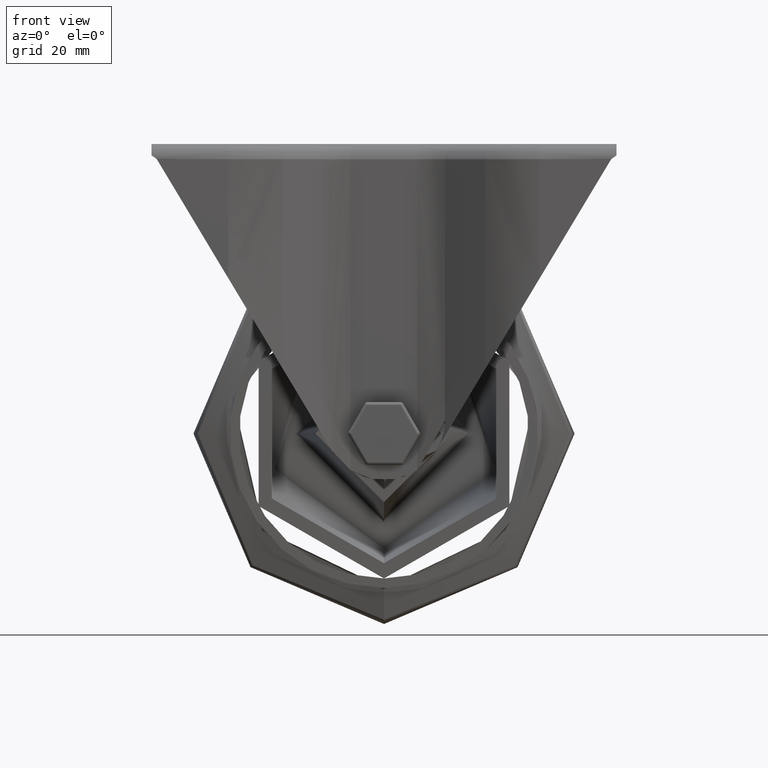
[diagram: clean part render]
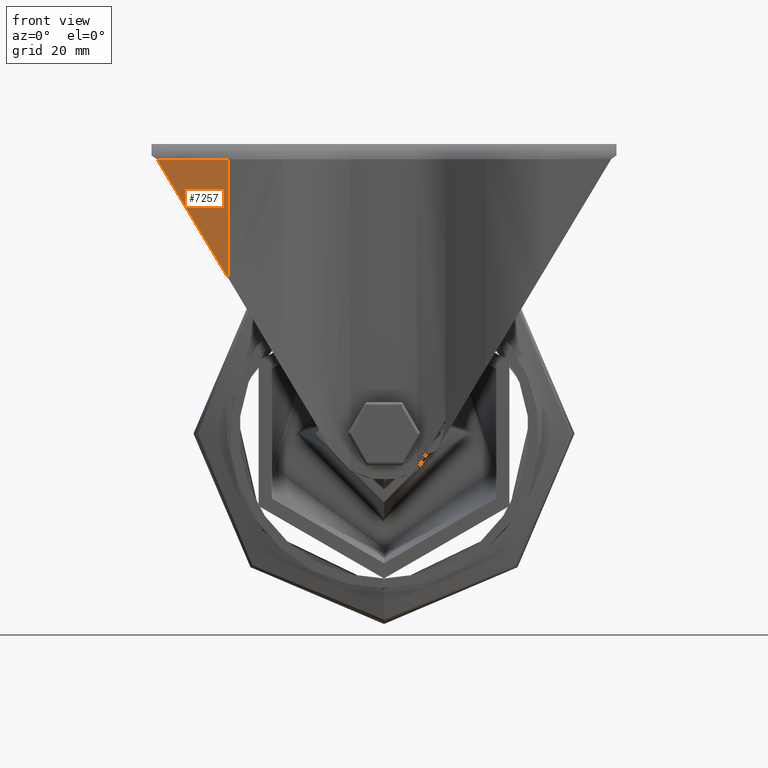
[diagram: same view with one face highlighted and labeled with its STEP entity id]
A machine part, front view. The second image highlights one B-rep face of the part: STEP entity #7257.
In plain terms, the highlighted planar face has unit normal (0, -1, 0).
Its self-contained STEP definition (entity closure, byte-faithful):
#1069=FACE_OUTER_BOUND('',#1510,.T.);
#1510=EDGE_LOOP('',(#5103,#5104,#5105));
#2018=LINE('',#10866,#2569);
#2019=LINE('',#10869,#2570);
#2020=LINE('',#10870,#2571);
#2569=VECTOR('',#8806,10.);
#2570=VECTOR('',#8809,10.);
#2571=VECTOR('',#8810,10.);
#3137=VERTEX_POINT('',#10858);
#3140=VERTEX_POINT('',#10864);
#3141=VERTEX_POINT('',#10868);
#3884=EDGE_CURVE('',#3140,#3137,#2018,.T.);
#3885=EDGE_CURVE('',#3137,#3141,#2019,.T.);
#3886=EDGE_CURVE('',#3141,#3140,#2020,.T.);
#5103=ORIENTED_EDGE('',*,*,#3885,.F.);
#5104=ORIENTED_EDGE('',*,*,#3884,.F.);
#5105=ORIENTED_EDGE('',*,*,#3886,.F.);
#7067=PLANE('',#7866);
#7257=ADVANCED_FACE('',(#1069),#7067,.T.);
#7866=AXIS2_PLACEMENT_3D('',#10867,#8807,#8808);
#8806=DIRECTION('',(-0.514643249946395,0.,0.857404411747813));
#8807=DIRECTION('center_axis',(0.,-1.,0.));
#8808=DIRECTION('ref_axis',(0.,0.,-1.));
#8809=DIRECTION('',(1.,0.,0.));
#8810=DIRECTION('',(0.,0.,-1.));
#10858=CARTESIAN_POINT('',(421.446584519402,-89.1951092699324,-4.));
#10864=CARTESIAN_POINT('',(440.166953390703,-89.1951092699324,-35.18845309148));
#10866=CARTESIAN_POINT('',(473.781631262275,-89.1951092699324,-91.1910784238221));
#10867=CARTESIAN_POINT('Origin',(440.166953390703,-89.1951092699324,-126.));
#10868=CARTESIAN_POINT('',(440.166953390703,-89.1951092699324,-4.));
#10869=CARTESIAN_POINT('',(440.166953390703,-89.1951092699324,-4.));
#10870=CARTESIAN_POINT('',(440.166953390703,-89.1951092699324,-126.));